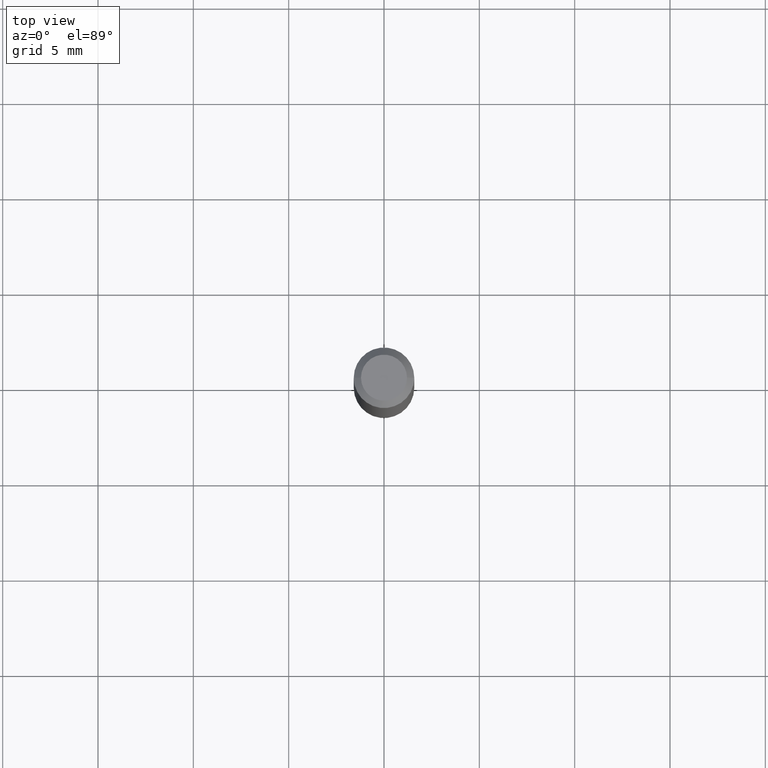
[diagram: clean part render]
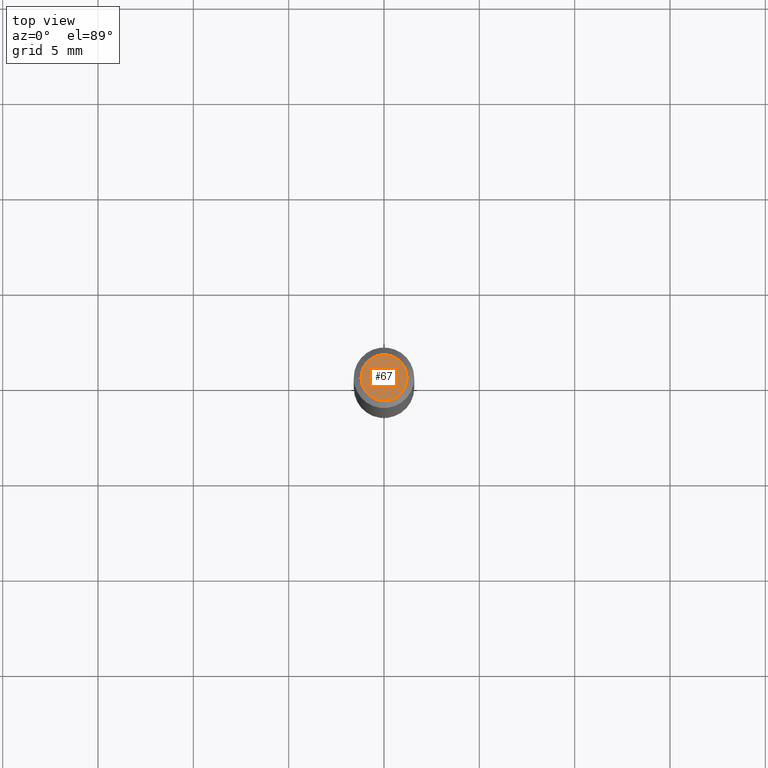
[diagram: same view with one face highlighted and labeled with its STEP entity id]
A machine part, top view. The second image highlights one B-rep face of the part: STEP entity #67.
In plain terms, the highlighted planar face has unit normal (0, -0, -1).
Its self-contained STEP definition (entity closure, byte-faithful):
#2 = DIRECTION ( 'NONE',  ( 1.000000000000000000, -6.982962677686267499E-15, 4.852736867747366768E-29 ) ) ;
#25 = CARTESIAN_POINT ( 'NONE',  ( 1.338927666171699620E-44, -1.911633854693045944E-30, -5.475136966724958768E-16 ) ) ;
#27 = DIRECTION ( 'NONE',  ( -2.445468806185136597E-29, 3.491481338843145583E-15, 1.000000000000000000 ) ) ;
#38 = ORIENTED_EDGE ( 'NONE', *, *, #346, .T. ) ;
#67 = ADVANCED_FACE ( 'NONE', ( #206 ), #431, .F. ) ;
#77 = CARTESIAN_POINT ( 'NONE',  ( 1.338927666171699620E-44, -1.911633854693045944E-30, -5.475136966724958768E-16 ) ) ;
#97 = EDGE_CURVE ( 'NONE', #118, #441, #372, .T. ) ;
#117 = CARTESIAN_POINT ( 'NONE',  ( 0.04749999999999999362, -4.035134999187587991E-16, -5.475136966724933130E-16 ) ) ;
#118 = VERTEX_POINT ( 'NONE', #246 ) ;
#138 = AXIS2_PLACEMENT_3D ( 'NONE', #321, #428, #429 ) ;
#172 = CIRCLE ( 'NONE', #240, 0.04749999999999999362 ) ;
#178 = DIRECTION ( 'NONE',  ( -2.445468806185136597E-29, 3.491481338843145583E-15, 1.000000000000000000 ) ) ;
#206 = FACE_OUTER_BOUND ( 'NONE', #399, .T. ) ;
#240 = AXIS2_PLACEMENT_3D ( 'NONE', #77, #178, #2 ) ;
#246 = CARTESIAN_POINT ( 'NONE',  ( -0.04749999999999999362, 3.578768372314200645E-16, -5.475136966724983420E-16 ) ) ;
#321 = CARTESIAN_POINT ( 'NONE',  ( 3.316907271900976096E-16, 0.04749999999999999362, -4.396022119312973841E-16 ) ) ;
#335 = ORIENTED_EDGE ( 'NONE', *, *, #97, .T. ) ;
#346 = EDGE_CURVE ( 'NONE', #441, #118, #172, .T. ) ;
#372 = CIRCLE ( 'NONE', #391, 0.04749999999999999362 ) ;
#391 = AXIS2_PLACEMENT_3D ( 'NONE', #25, #27, #394 ) ;
#394 = DIRECTION ( 'NONE',  ( 1.000000000000000000, -6.982962677686267499E-15, 4.852736867747366768E-29 ) ) ;
#399 = EDGE_LOOP ( 'NONE', ( #335, #38 ) ) ;
#428 = DIRECTION ( 'NONE',  ( 2.438088387897960049E-29, -3.491481338843145188E-15, -1.000000000000000000 ) ) ;
#429 = DIRECTION ( 'NONE',  ( -1.000000000000000000, 6.982962677686265922E-15, -4.876176775795935793E-29 ) ) ;
#431 = PLANE ( 'NONE',  #138 ) ;
#441 = VERTEX_POINT ( 'NONE', #117 ) ;